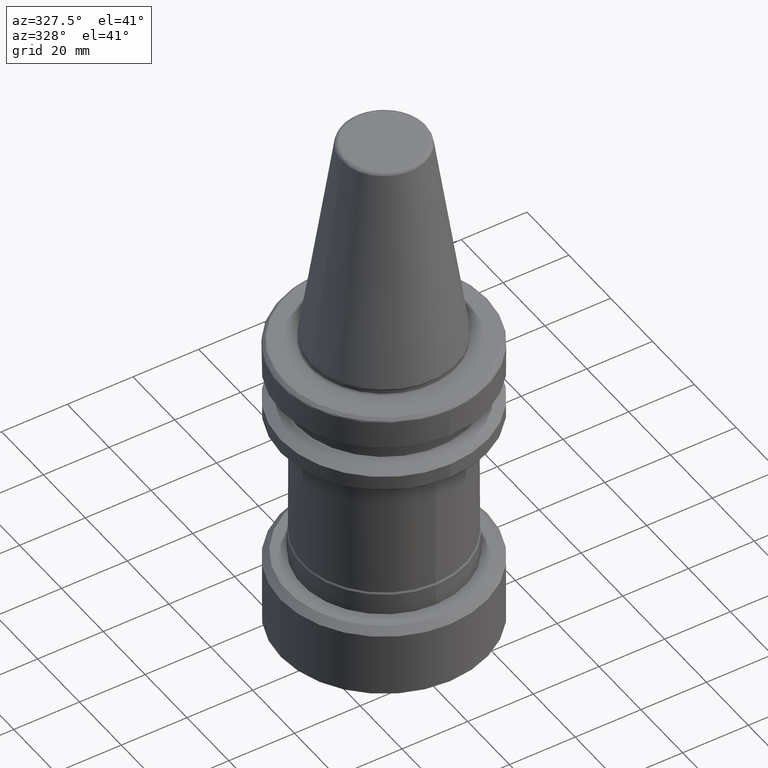
[diagram: clean part render]
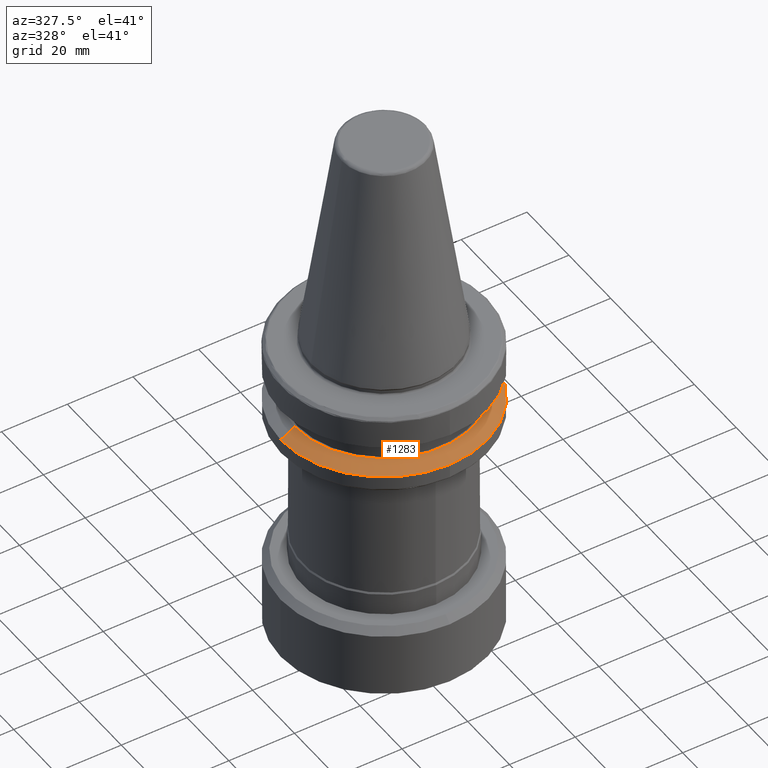
[diagram: same view with one face highlighted and labeled with its STEP entity id]
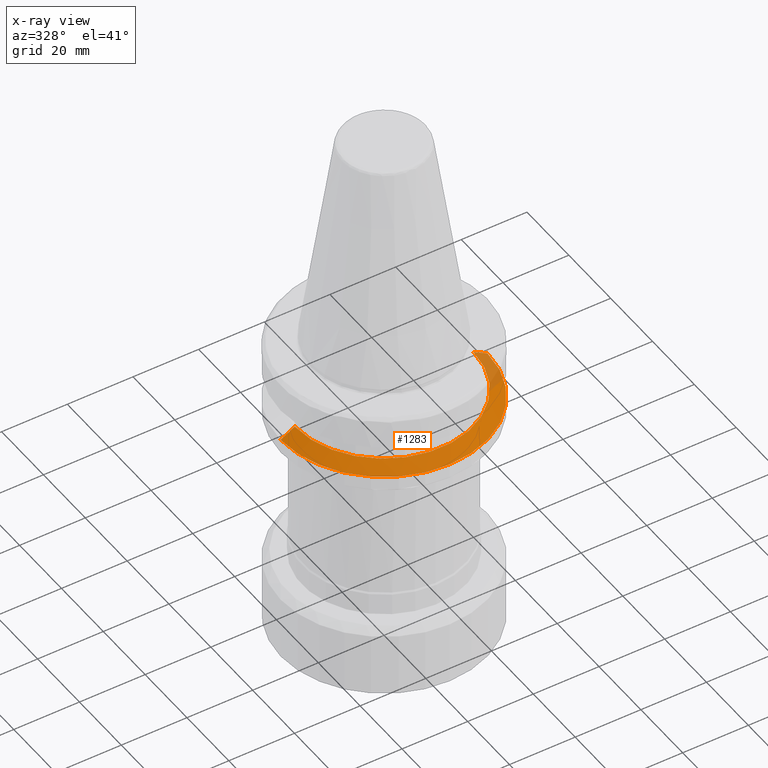
[diagram: x-ray of the same camera — body ghosted, the highlighted face saturated]
A machine part, auxiliary view. The second image highlights one B-rep face of the part: STEP entity #1283.
The next image is the same camera in x-ray: the body ghosted, the highlighted face saturated — about 8% of this face is hidden behind the body in this view.
In plain terms, the highlighted conical surface has half-angle 60 deg.
Its self-contained STEP definition (entity closure, byte-faithful):
#96 = DIRECTION ( 'NONE',  ( -1.000000000000000000, 0.0000000000000000000, 0.0000000000000000000 ) ) ;
#151 = CARTESIAN_POINT ( 'NONE',  ( -27.17549384606942900, 0.0000000000000000000, -19.09999999999952200 ) ) ;
#311 = DIRECTION ( 'NONE',  ( -0.0000000000000000000, -0.0000000000000000000, -1.000000000000000000 ) ) ;
#323 = DIRECTION ( 'NONE',  ( 0.8660254038255396100, 1.060575238775241000E-016, -0.4999999999288110600 ) ) ;
#369 = DIRECTION ( 'NONE',  ( -0.0000000000000000000, -0.0000000000000000000, -1.000000000000000000 ) ) ;
#383 = CONICAL_SURFACE ( 'NONE', #793, 27.17549384606942900, 1.047197551278799700 ) ;
#385 = CIRCLE ( 'NONE', #1714, 27.17549384606942900 ) ;
#426 = DIRECTION ( 'NONE',  ( -0.8660254038255396100, 0.0000000000000000000, -0.4999999999288110600 ) ) ;
#570 = AXIS2_PLACEMENT_3D ( 'NONE', #929, #2800, #1205 ) ;
#594 = LINE ( 'NONE', #151, #3279 ) ;
#639 = FACE_OUTER_BOUND ( 'NONE', #1301, .T. ) ;
#663 = CARTESIAN_POINT ( 'NONE',  ( 27.17549384606942900, 3.592837786362356300E-015, -19.09999999999952200 ) ) ;
#672 = VERTEX_POINT ( 'NONE', #2054 ) ;
#793 = AXIS2_PLACEMENT_3D ( 'NONE', #1973, #369, #96 ) ;
#818 = AXIS2_PLACEMENT_3D ( 'NONE', #2979, #1379, #3250 ) ;
#887 = ORIENTED_EDGE ( 'NONE', *, *, #3085, .F. ) ;
#929 = CARTESIAN_POINT ( 'NONE',  ( 0.0000000000000000000, 0.0000000000000000000, -21.59675479173589400 ) ) ;
#1205 = DIRECTION ( 'NONE',  ( -1.000000000000000000, 0.0000000000000000000, 0.0000000000000000000 ) ) ;
#1217 = VERTEX_POINT ( 'NONE', #2500 ) ;
#1283 = ADVANCED_FACE ( 'NONE', ( #639 ), #383, .T. ) ;
#1301 = EDGE_LOOP ( 'NONE', ( #887, #3471, #2475, #1473, #3356 ) ) ;
#1379 = DIRECTION ( 'NONE',  ( -0.0000000000000000000, -0.0000000000000000000, -1.000000000000000000 ) ) ;
#1473 = ORIENTED_EDGE ( 'NONE', *, *, #3024, .F. ) ;
#1714 = AXIS2_PLACEMENT_3D ( 'NONE', #1920, #311, #2191 ) ;
#1797 = EDGE_CURVE ( 'NONE', #1217, #2144, #594, .T. ) ;
#1920 = CARTESIAN_POINT ( 'NONE',  ( 0.0000000000000000000, 0.0000000000000000000, -19.09999999999952200 ) ) ;
#1973 = CARTESIAN_POINT ( 'NONE',  ( 0.0000000000000000000, 0.0000000000000000000, -19.09999999999952200 ) ) ;
#2054 = CARTESIAN_POINT ( 'NONE',  ( 0.0000000000000000000, -31.50000000021883300, -21.59675479173589400 ) ) ;
#2144 = VERTEX_POINT ( 'NONE', #2662 ) ;
#2191 = DIRECTION ( 'NONE',  ( -1.000000000000000000, 0.0000000000000000000, 0.0000000000000000000 ) ) ;
#2193 = CIRCLE ( 'NONE', #570, 31.50000000021883300 ) ;
#2475 = ORIENTED_EDGE ( 'NONE', *, *, #1797, .T. ) ;
#2500 = CARTESIAN_POINT ( 'NONE',  ( -27.17549384606942900, 0.0000000000000000000, -19.09999999999952200 ) ) ;
#2611 = CIRCLE ( 'NONE', #818, 31.50000000021883300 ) ;
#2662 = CARTESIAN_POINT ( 'NONE',  ( -31.50000000021883300, 0.0000000000000000000, -21.59675479173589400 ) ) ;
#2749 = CARTESIAN_POINT ( 'NONE',  ( 27.17549384606942900, 3.328038155383751900E-015, -19.09999999999952200 ) ) ;
#2800 = DIRECTION ( 'NONE',  ( -0.0000000000000000000, -0.0000000000000000000, -1.000000000000000000 ) ) ;
#2975 = VERTEX_POINT ( 'NONE', #3084 ) ;
#2979 = CARTESIAN_POINT ( 'NONE',  ( 0.0000000000000000000, 0.0000000000000000000, -21.59675479173589400 ) ) ;
#3024 = EDGE_CURVE ( 'NONE', #672, #2144, #2611, .T. ) ;
#3037 = EDGE_CURVE ( 'NONE', #3178, #1217, #385, .T. ) ;
#3065 = LINE ( 'NONE', #2749, #3149 ) ;
#3084 = CARTESIAN_POINT ( 'NONE',  ( 31.50000000021883300, 3.857637417340961100E-015, -21.59675479173589400 ) ) ;
#3085 = EDGE_CURVE ( 'NONE', #3178, #2975, #3065, .T. ) ;
#3149 = VECTOR ( 'NONE', #323, 1000.000000000000000 ) ;
#3157 = EDGE_CURVE ( 'NONE', #2975, #672, #2193, .T. ) ;
#3178 = VERTEX_POINT ( 'NONE', #663 ) ;
#3250 = DIRECTION ( 'NONE',  ( -1.000000000000000000, 0.0000000000000000000, 0.0000000000000000000 ) ) ;
#3279 = VECTOR ( 'NONE', #426, 1000.000000000000000 ) ;
#3356 = ORIENTED_EDGE ( 'NONE', *, *, #3157, .F. ) ;
#3471 = ORIENTED_EDGE ( 'NONE', *, *, #3037, .T. ) ;